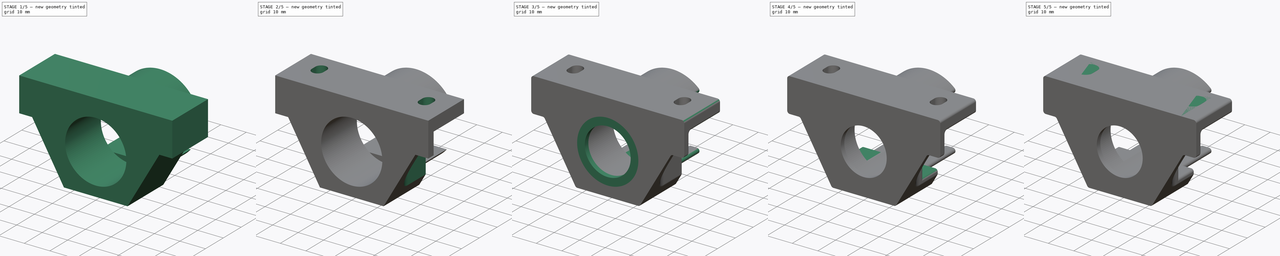
[diagram: build sequence overview — one tinted view per stage of 5, left to right]
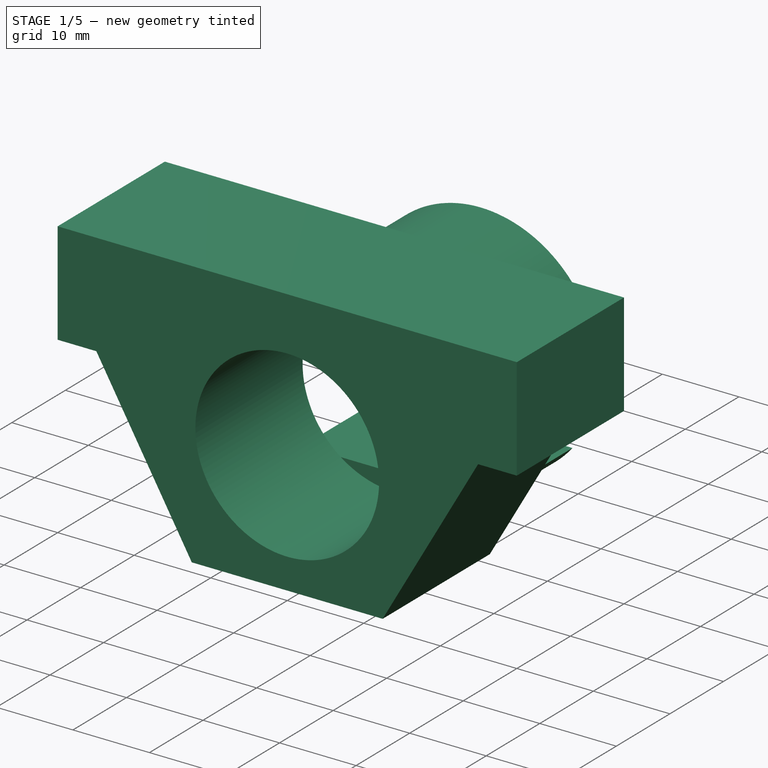
[diagram: stage 1 of 5 — iso view after this stage's code; geometry added in this stage tinted green]
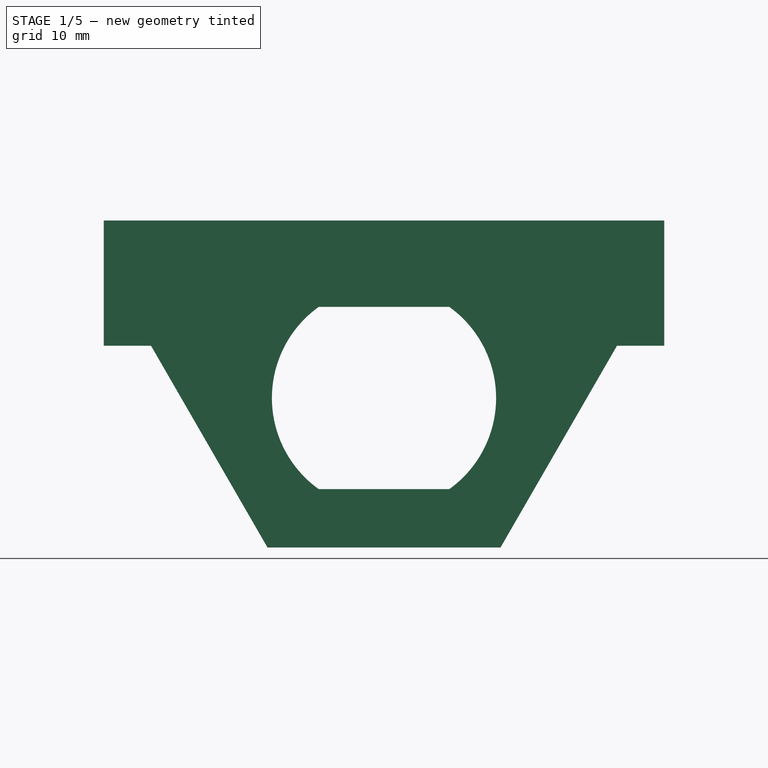
[diagram: stage 1 of 5 — front view after this stage's code; geometry added in this stage tinted green]
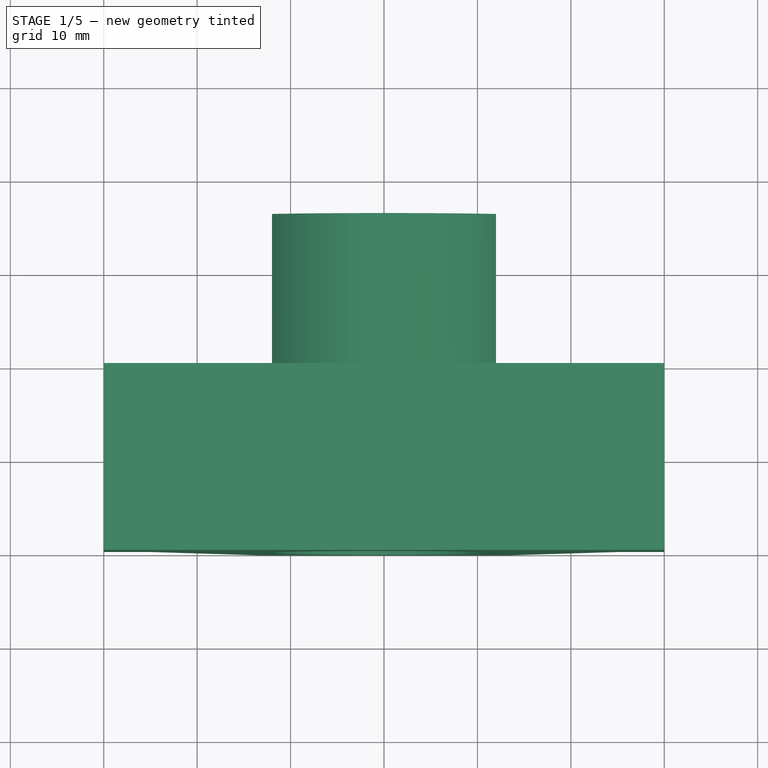
[diagram: stage 1 of 5 — top view after this stage's code; geometry added in this stage tinted green]
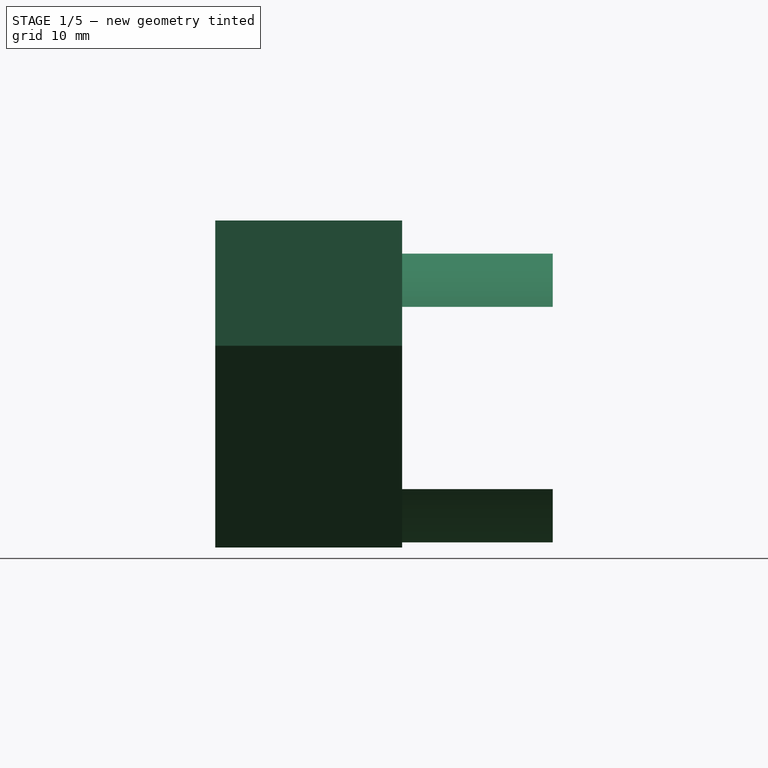
[diagram: stage 1 of 5 — right view after this stage's code; geometry added in this stage tinted green]
FCSTD DOCUMENT  (FreeCAD 0.18R16117 (Git))
Label: T60_2_SensorBracket_mk6
License: All rights reserved
LicenseURL: http://en.wikipedia.org/wiki/All_rights_reserved
objects: Sketcher::SketchObject×9, PartDesign::Pocket×6, PartDesign::Fillet×5, PartDesign::Pad×3, Part::Box×2, PartDesign::Body×1
note: 35 computed .brp shape members not serialized (recipe doc carries the construction recipe); baked Part::Feature solids carry a one-line shape summary decoded from their .brp

FEATURE [Sketcher::SketchObject] Sketch
  MapMode = 5
  Placement = pos=(0,0,0) rot=(1,0,0;1.5708rad)
  Support = -> [XZ_Plane]
  sketch-geometry (14):
    g0: Circle CenterX=0 CenterY=0 CenterZ=0 NormalX=0 NormalY=0 NormalZ=1 AngleXU=0 Radius=12
    g1: LineSegment StartX=12.4708 StartY=-16 StartZ=0 EndX=24.9415 EndY=5.6 EndZ=0
    g2: LineSegment [constr] StartX=24.9415 StartY=5.6 StartZ=0 EndX=12.4708 EndY=27.2 EndZ=0
    g3: LineSegment [constr] StartX=12.4708 StartY=27.2 StartZ=0 EndX=-12.4708 EndY=27.2 EndZ=0
    g4: LineSegment [constr] StartX=-12.4708 StartY=27.2 StartZ=0 EndX=-24.9415 EndY=5.6 EndZ=0
    g5: LineSegment StartX=-24.9415 StartY=5.6 StartZ=0 EndX=-12.4708 EndY=-16 EndZ=0
    g6: LineSegment StartX=-12.4708 StartY=-16 StartZ=0 EndX=12.4708 EndY=-16 EndZ=0
    g7: Circle [constr] CenterX=0 CenterY=5.6 CenterZ=0 NormalX=0 NormalY=0 NormalZ=1 AngleXU=0 Radius=24.9415
    g8: LineSegment StartX=-30 StartY=19 StartZ=0 EndX=30 EndY=19 EndZ=0
    g9: LineSegment StartX=30 StartY=19 StartZ=0 EndX=30 EndY=5.6 EndZ=0
    g10: LineSegment [constr] StartX=30 StartY=5.6 StartZ=0 EndX=-30 EndY=5.6 EndZ=0
    g11: LineSegment StartX=-30 StartY=5.6 StartZ=0 EndX=-30 EndY=19 EndZ=0
    g12: LineSegment StartX=-24.9415 StartY=5.6 StartZ=0 EndX=-30 EndY=5.6 EndZ=0
    g13: LineSegment StartX=24.9415 StartY=5.6 StartZ=0 EndX=30 EndY=5.6 EndZ=0
  constraints (34):
    c: Coincident(g0,g-1)
    c: Coincident(g1,g2)
    c: Coincident(g2,g3)
    c: Coincident(g3,g4)
    c: Coincident(g4,g5)
    c: Coincident(g5,g6)
    c: Coincident(g6,g1)
    c: Equal(g1, g2-g6) x5
    c: PointOnObject(g1,g7)
    c: PointOnObject(g2,g7)
    c: PointOnObject(g3,g7)
    c: PointOnObject(g4,g7)
    c: PointOnObject(g5,g7)
    c: PointOnObject(g6,g7)
    c: PointOnObject(g7,g-2)
    c: Horizontal(g6)
    c: Distance(g7,g0) = 5.6
    c: Coincident(g8,g9)
    c: Coincident(g9,g10)
    c: Coincident(g10,g11)
    c: Coincident(g11,g8)
    c: Horizontal(g10)
    c: Vertical(g9)
    c: Vertical(g11)
    c: PointOnObject(g5,g10)
    c: Coincident(g12,g5)
    c: Coincident(g12,g11)
    c: Coincident(g13,g1)
    c: Coincident(g13,g9)
    c: Symmetric(g8,g8,g-2)
    c: Distance(g0,g8) = 19
    c: Distance(g0,g6) = 16
    c: Distance(g8) = 60
    c: Diameter(g0) = 24
FEATURE [PartDesign::Pad] Pad
  Length = 20
  Length2 = 100
  Placement = pos=(0,0,0) rot=(1,0,0;1.5708rad)
  Profile = -> Sketch
  Type = 0
FEATURE [Sketcher::SketchObject] Sketch001
  MapMode = 5
  Placement = pos=(0,0,0) rot=(-1,0,0;1.5708rad)
  sketch-geometry (8):
    g0: ArcOfCircle CenterX=0 CenterY=0 CenterZ=0 NormalX=0 NormalY=0 NormalZ=1 AngleXU=0 Radius=15.45 StartAngle=3.82452 EndAngle=5.60026
    g1: ArcOfCircle CenterX=0 CenterY=0 CenterZ=0 NormalX=0 NormalY=0 NormalZ=1 AngleXU=0 Radius=9.75 StartAngle=4.71238 EndAngle=4.71239
    g2: LineSegment StartX=11.985 StartY=-9.75 StartZ=0 EndX=4.02518e-05 EndY=-9.75 EndZ=0
    g3: LineSegment StartX=-11.985 StartY=9.75 StartZ=0 EndX=-4.02527e-05 EndY=9.75 EndZ=0
    g4: LineSegment StartX=4.02518e-05 StartY=9.75 StartZ=0 EndX=11.985 EndY=9.75 EndZ=0
    g5: LineSegment StartX=-4.02541e-05 StartY=-9.75 StartZ=0 EndX=-11.985 EndY=-9.75 EndZ=0
    g6: ArcOfCircle CenterX=0 CenterY=0 CenterZ=0 NormalX=0 NormalY=0 NormalZ=1 AngleXU=0 Radius=9.75 StartAngle=1.57079 EndAngle=1.5708
    g7: ArcOfCircle CenterX=0 CenterY=0 CenterZ=0 NormalX=0 NormalY=0 NormalZ=1 AngleXU=0 Radius=15.45 StartAngle=0.682929 EndAngle=2.45866
  constraints (21):
    c: Coincident(g0,g-1)
    c: Diameter(g0) = 30.9
    c: Coincident(g1,g0)
    c: Diameter(g1) = 19.5
    c: Horizontal(g2)
    c: Horizontal(g3)
    c: Tangent(g3,g4)
    c: Tangent(g2,g5)
    c: Coincident(g0,g5)
    c: Coincident(g7,g3)
    c: Coincident(g1,g5)
    c: Coincident(g6,g3)
    c: Coincident(g1,g2)
    c: Coincident(g6,g4)
    c: Coincident(g1,g6)
    c: Equal(g0,g7)
    c: Coincident(g0,g2)
    c: Coincident(g7,g4)
    c: Coincident(g0,g7)
    c: Symmetric(g1,g4,g-1)
    c: DistanceY(g0,g4) = 19.5
FEATURE [PartDesign::Pad] Pad001
  BaseFeature = -> Pad
  Length = 16.12
  Length2 = 100
  Placement = pos=(0,0,0) rot=(1,0,0;1.5708rad)
  Profile = -> Sketch001
  Type = 0
FEATURE [Sketcher::SketchObject] Sketch003
  MapMode = 5
  Support = -> [XY_Plane]
  sketch-geometry (4):
    g0: LineSegment StartX=-2 StartY=2.12 StartZ=0 EndX=2 EndY=2.12 EndZ=0
    g1: LineSegment StartX=2 StartY=2.12 StartZ=0 EndX=2 EndY=5.32 EndZ=0
    g2: LineSegment StartX=2 StartY=5.32 StartZ=0 EndX=-2 EndY=5.32 EndZ=0
    g3: LineSegment StartX=-2 StartY=5.32 StartZ=0 EndX=-2 EndY=2.12 EndZ=0
  constraints (11):
    c: Coincident(g0,g1)
    c: Coincident(g1,g2)
    c: Coincident(g2,g3)
    c: Coincident(g3,g0)
    c: Horizontal(g0)
    c: Vertical(g1)
    c: Vertical(g3)
    c: Distance(g3) = 3.2
    c: Symmetric(g2,g1,g-2)
    c: Distance(g-1,g0) = 2.12
    c: Distance(g2) = 4
FEATURE [Sketcher::SketchObject] Sketch007
  MapMode = 5
  Placement = pos=(0,16.12,-3.22e-14) rot=(-1,0,0;1.5708rad)
  sketch-geometry (4):
    g0: LineSegment StartX=-2 StartY=12.5 StartZ=0 EndX=2 EndY=12.5 EndZ=0
    g1: LineSegment StartX=2 StartY=12.5 StartZ=0 EndX=2 EndY=-12.5 EndZ=0
    g2: LineSegment StartX=2 StartY=-12.5 StartZ=0 EndX=-2 EndY=-12.5 EndZ=0
    g3: LineSegment StartX=-2 StartY=-12.5 StartZ=0 EndX=-2 EndY=12.5 EndZ=0
  constraints (10):
    c: Coincident(g0,g1)
    c: Coincident(g1,g2)
    c: Coincident(g2,g3)
    c: Coincident(g3,g0)
    c: Horizontal(g2)
    c: Vertical(g1)
    c: Distance(g1) = 25
    c: Distance(g2) = 4
    c: Symmetric(g0,g0,g-2)
    c: Symmetric(g0,g2,g-1)
FEATURE [PartDesign::Pocket] Pocket
  BaseFeature = -> Pad001
  Length = 14
  Length2 = 100
  Placement = pos=(0,0,0) rot=(1,0,0;1.5708rad)
  Profile = -> Sketch007
  Type = 0
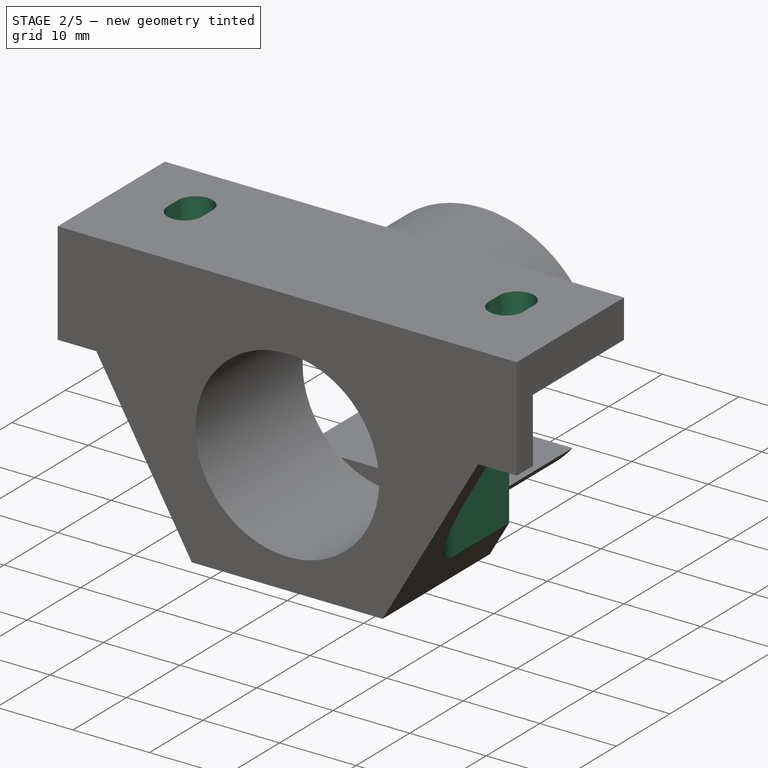
[diagram: stage 2 of 5 — iso view after this stage's code; geometry added in this stage tinted green]
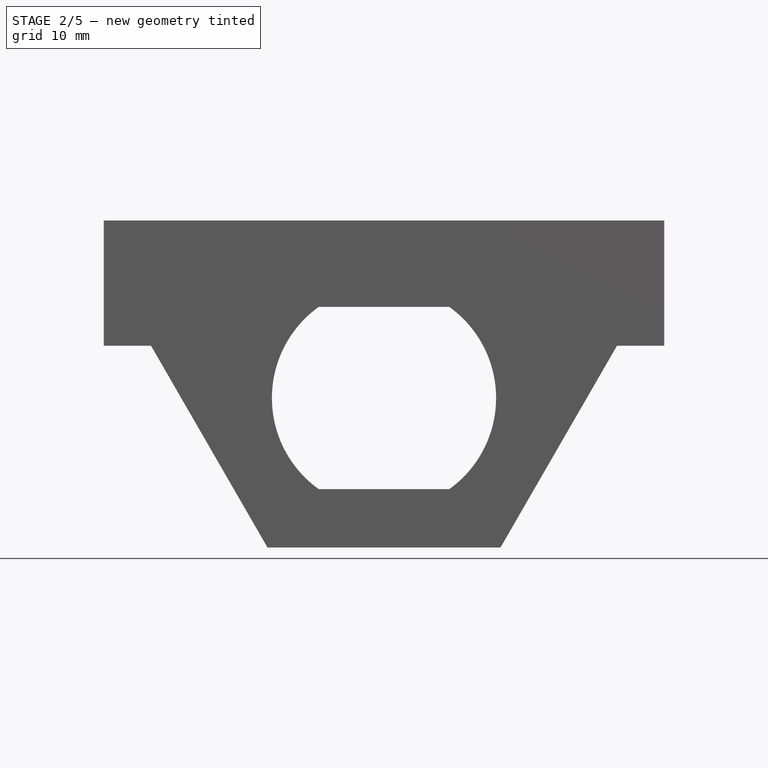
[diagram: stage 2 of 5 — front view after this stage's code; geometry added in this stage tinted green]
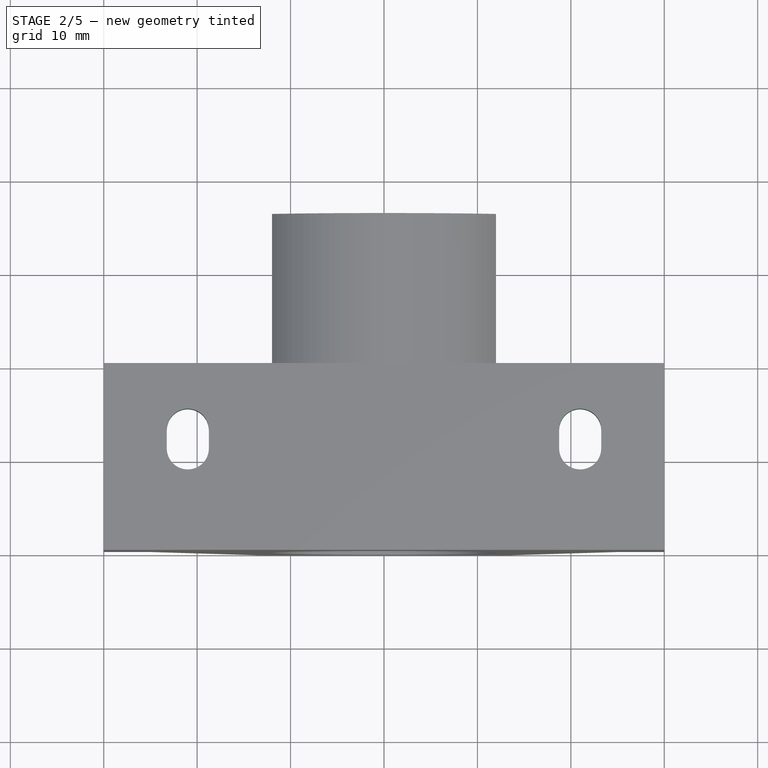
[diagram: stage 2 of 5 — top view after this stage's code; geometry added in this stage tinted green]
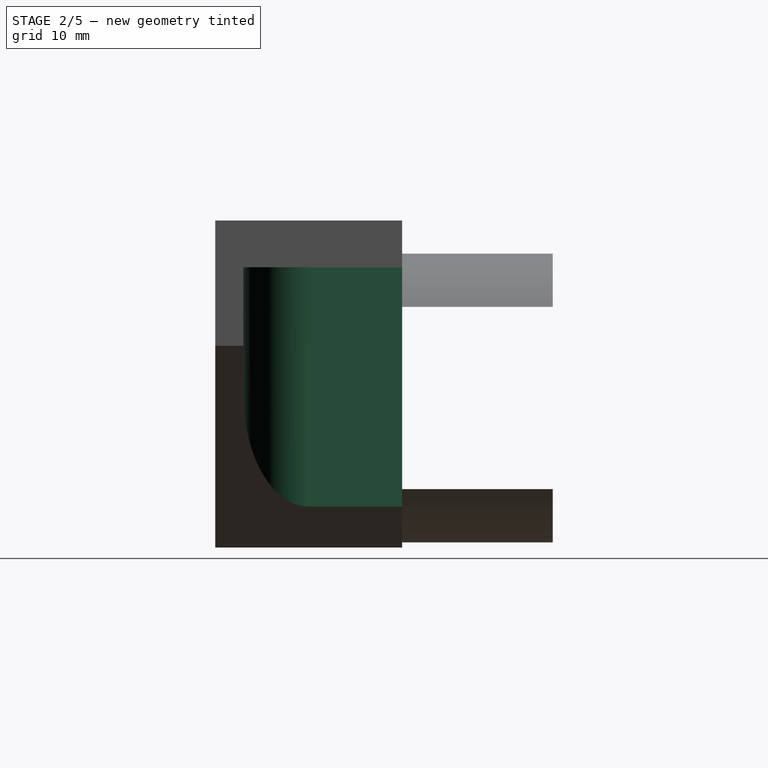
[diagram: stage 2 of 5 — right view after this stage's code; geometry added in this stage tinted green]
FEATURE [PartDesign::Pocket] Pocket004
  BaseFeature = -> Pocket
  Length = 26
  Length2 = 100
  Midplane = true
  Placement = pos=(0,0,0) rot=(1,0,0;1.5708rad)
  Profile = -> Sketch003
  Type = 0
FEATURE [Sketcher::SketchObject] Sketch008
  ExternalGeometry = -> [Pad001]
  MapMode = 5
  Placement = pos=(-6.9e-15,1.2e-15,5.6) rot=(1,0,0;3.14159rad)
  Support = -> [Pad001]
  sketch-geometry (10):
    g0: LineSegment StartX=-30 StartY=0 StartZ=0 EndX=-15 EndY=0 EndZ=0
    g1: LineSegment StartX=-15 StartY=0 StartZ=0 EndX=-15 EndY=10 EndZ=0
    g2: LineSegment StartX=-22 StartY=17 StartZ=0 EndX=-30 EndY=17 EndZ=0
    g3: LineSegment StartX=-30 StartY=17 StartZ=0 EndX=-30 EndY=0 EndZ=0
    g4: LineSegment StartX=30 StartY=0 StartZ=0 EndX=15 EndY=0 EndZ=0
    g5: LineSegment StartX=15 StartY=0 StartZ=0 EndX=15 EndY=10 EndZ=0
    g6: LineSegment StartX=22 StartY=17 StartZ=0 EndX=30 EndY=17 EndZ=0
    g7: LineSegment StartX=30 StartY=17 StartZ=0 EndX=30 EndY=0 EndZ=0
    g8: ArcOfCircle CenterX=22 CenterY=10 CenterZ=0 NormalX=0 NormalY=0 NormalZ=1 AngleXU=0 Radius=7 StartAngle=1.5708 EndAngle=3.14159
    g9: ArcOfCircle CenterX=-22 CenterY=10 CenterZ=0 NormalX=0 NormalY=0 NormalZ=1 AngleXU=0 Radius=7 StartAngle=2.9822e-12 EndAngle=1.5708
  constraints (26):
    c: Coincident(g0,g1)
    c: Coincident(g2,g3)
    c: Coincident(g3,g0)
    c: Horizontal(g0)
    c: Horizontal(g2)
    c: Vertical(g1)
    c: Vertical(g3)
    c: Coincident(g0,g-3)
    c: Coincident(g4,g5)
    c: Coincident(g6,g7)
    c: Coincident(g7,g4)
    c: Horizontal(g4)
    c: Horizontal(g6)
    c: Vertical(g5)
    c: Vertical(g7)
    c: Coincident(g4,g-4)
    c: Equal(g6,g2)
    c: Equal(g1,g5)
    c: Distance(g2,g-3) = 3
    c: Distance(g0) = 15
    c: Tangent(g5,g8) = 1.5708
    c: Tangent(g6,g8) = 1.5708
    c: Tangent(g1,g9) = -1.5708
    c: Tangent(g2,g9) = -1.5708
    c: Equal(g9,g8)
    c: Radius(g8) = 7
FEATURE [PartDesign::Pocket] Pocket005
  BaseFeature = -> Pocket004
  Length = 8.4
  Length2 = 100
  Placement = pos=(0,0,0) rot=(1,0,0;1.5708rad)
  Profile = -> Sketch008
  Type = 4
FEATURE [Sketcher::SketchObject] Sketch009
  MapMode = 5
  Placement = pos=(0,1.05e-14,19) rot=(0,0,1;3.14159rad)
  Support = -> [Pocket005]
  sketch-geometry (8):
    g0: ArcOfCircle CenterX=-21 CenterY=9.13943 CenterZ=0 NormalX=0 NormalY=0 NormalZ=1 AngleXU=0 Radius=2.25 StartAngle=2e-16 EndAngle=3.14159
    g1: ArcOfCircle CenterX=-21 CenterY=7.13943 CenterZ=0 NormalX=0 NormalY=0 NormalZ=1 AngleXU=0 Radius=2.25 StartAngle=3.14159 EndAngle=6.28319
    g2: LineSegment StartX=-23.25 StartY=9.13943 StartZ=0 EndX=-23.25 EndY=7.13943 EndZ=0
    g3: LineSegment StartX=-18.75 StartY=9.13943 StartZ=0 EndX=-18.75 EndY=7.13943 EndZ=0
    g4: ArcOfCircle CenterX=21 CenterY=9.13943 CenterZ=0 NormalX=0 NormalY=0 NormalZ=1 AngleXU=0 Radius=2.25 StartAngle=1e-16 EndAngle=3.14159
    g5: ArcOfCircle CenterX=21 CenterY=7.13943 CenterZ=0 NormalX=0 NormalY=0 NormalZ=1 AngleXU=0 Radius=2.25 StartAngle=3.14159 EndAngle=6.28319
    g6: LineSegment StartX=18.75 StartY=9.13943 StartZ=0 EndX=18.75 EndY=7.13943 EndZ=0
    g7: LineSegment StartX=23.25 StartY=9.13943 StartZ=0 EndX=23.25 EndY=7.13943 EndZ=0
  constraints (18):
    c: Tangent(g0,g3) = 1.5708
    c: Tangent(g0,g2) = -1.5708
    c: Tangent(g2,g1) = -1.5708
    c: Tangent(g3,g1) = 1.5708
    c: Vertical(g2)
    c: Equal(g0,g1)
    c: Tangent(g4,g7) = 1.5708
    c: Tangent(g4,g6) = -1.5708
    c: Tangent(g6,g5) = -1.5708
    c: Tangent(g7,g5) = 1.5708
    c: Vertical(g6)
    c: Equal(g4,g5)
    c: Equal(g0,g4)
    c: Symmetric(g0,g4,g-2)
    c: Equal(g3,g6)
    c: Distance(g0,g1) = 2
    c: Diameter(g0) = 4.5
    c: Distance(g0,g-2) = 21
FEATURE [PartDesign::Pocket] Pocket006
  BaseFeature = -> Pocket005
  Length = 5
  Length2 = 100
  Placement = pos=(0,0,0) rot=(1,0,0;1.5708rad)
  Profile = -> Sketch009
  Type = 0
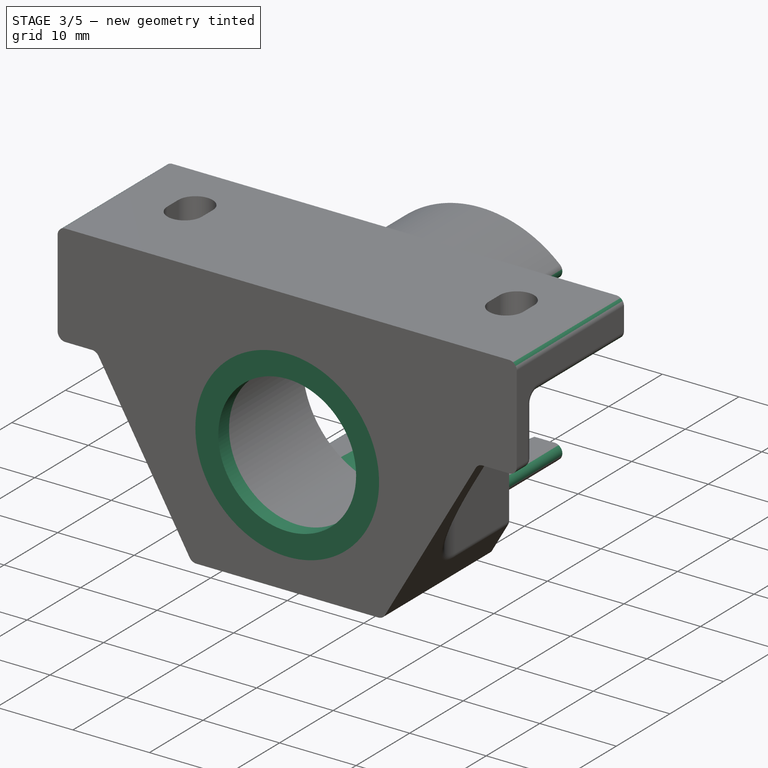
[diagram: stage 3 of 5 — iso view after this stage's code; geometry added in this stage tinted green]
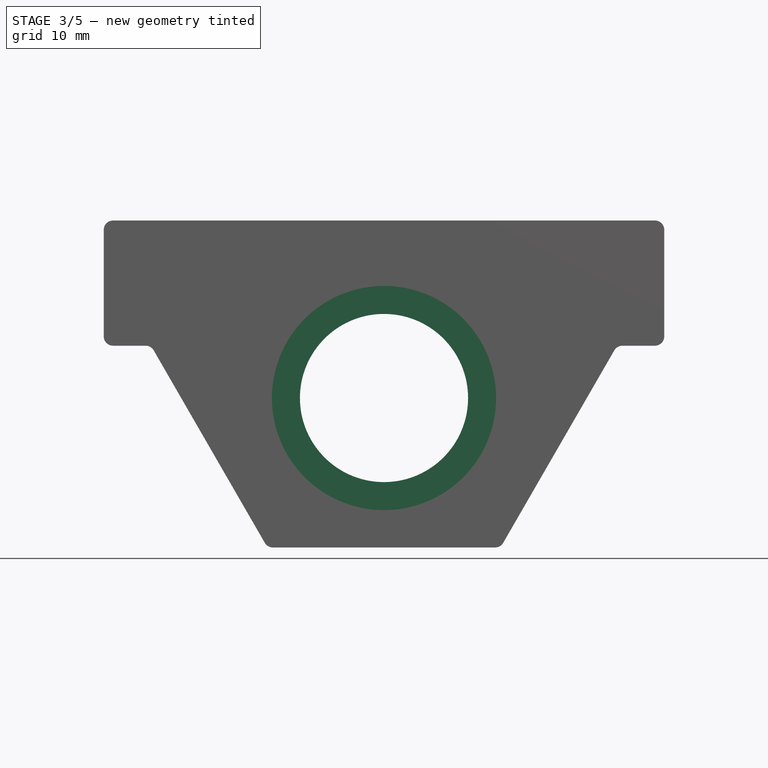
[diagram: stage 3 of 5 — front view after this stage's code; geometry added in this stage tinted green]
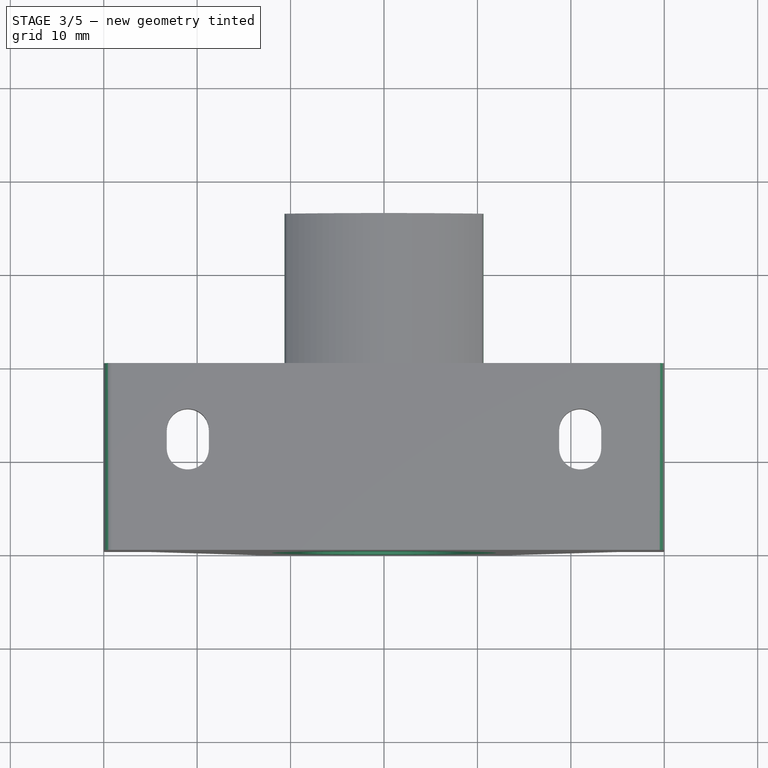
[diagram: stage 3 of 5 — top view after this stage's code; geometry added in this stage tinted green]
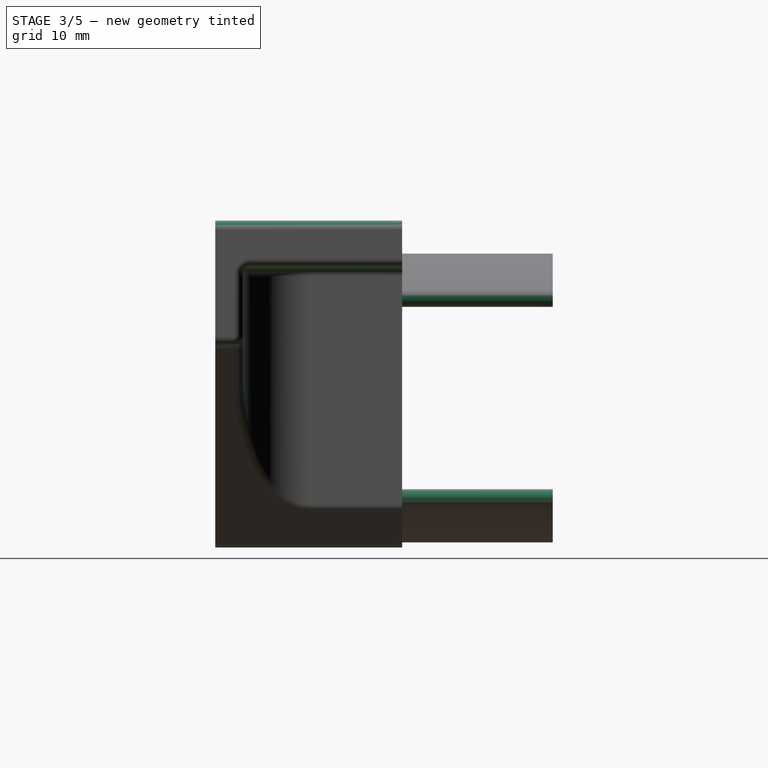
[diagram: stage 3 of 5 — right view after this stage's code; geometry added in this stage tinted green]
FEATURE [Sketcher::SketchObject] Sketch010
  MapMode = 5
  Placement = pos=(0,-20,-4e-15) rot=(1,0,0;1.5708rad)
  sketch-geometry (2):
    g0: Circle CenterX=0 CenterY=0 CenterZ=0 NormalX=0 NormalY=0 NormalZ=1 AngleXU=0 Radius=12
    g1: Circle CenterX=0 CenterY=0 CenterZ=0 NormalX=0 NormalY=0 NormalZ=1 AngleXU=0 Radius=8.9
  constraints (4):
    c: Coincident(g0,g-1)
    c: Diameter(g0) = 24
    c: Coincident(g1,g0)
    c: Diameter(g1) = 17.8
FEATURE [PartDesign::Pocket] Pocket007
  BaseFeature = -> Pocket006
  Length = 5
  Length2 = 100
  Placement = pos=(0,0,0) rot=(1,0,0;1.5708rad)
  Profile = -> Sketch010
  Type = 1
FEATURE [PartDesign::Fillet] Fillet
  Base = -> Pocket007 [Edge44,Vertex8,Edge7,Edge5,Edge33,Edge72,Edge60,Edge49,Edge58,Edge3,Edge8,Edge9,Edge43,Edge68,Edge90,Edge59,Edge42,Edge14,Edge63]
  BaseFeature = -> Pocket007
  Placement = pos=(0,0,0) rot=(1,0,0;1.5708rad)
  Radius = 1
FEATURE [PartDesign::Fillet] Fillet001
  Base = -> Fillet [Edge122,Edge118,Edge119,Edge124]
  BaseFeature = -> Fillet
  Placement = pos=(0,0,0) rot=(1,0,0;1.5708rad)
  Radius = 1
FEATURE [Sketcher::SketchObject] Sketch011
  MapMode = 5
  Placement = pos=(0,-20,2.3e-15) rot=(1,0,0;1.5708rad)
  sketch-geometry (2):
    g0: Circle CenterX=0 CenterY=0 CenterZ=0 NormalX=0 NormalY=0 NormalZ=1 AngleXU=0 Radius=12.7513
    g1: Circle CenterX=0 CenterY=0 CenterZ=0 NormalX=0 NormalY=0 NormalZ=1 AngleXU=0 Radius=9
  constraints (3):
    c: Coincident(g0,g-1)
    c: Coincident(g1,g0)
    c: Diameter(g1) = 18
FEATURE [PartDesign::Pad] Pad002
  BaseFeature = -> Fillet001
  Length = 2
  Length2 = 100
  Placement = pos=(0,0,0) rot=(1,0,0;1.5708rad)
  Profile = -> Sketch011
  Reversed = true
  Type = 0
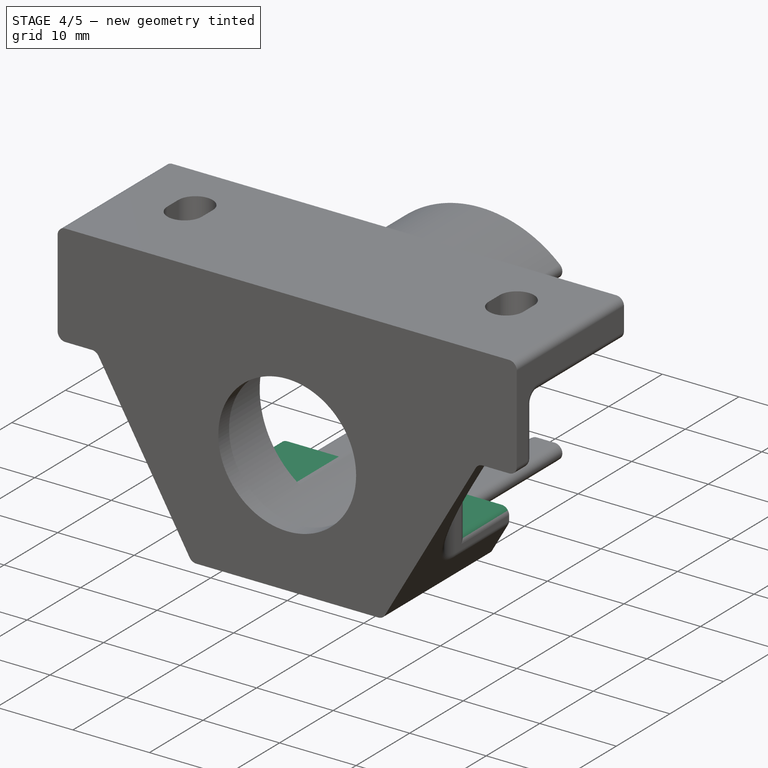
[diagram: stage 4 of 5 — iso view after this stage's code; geometry added in this stage tinted green]
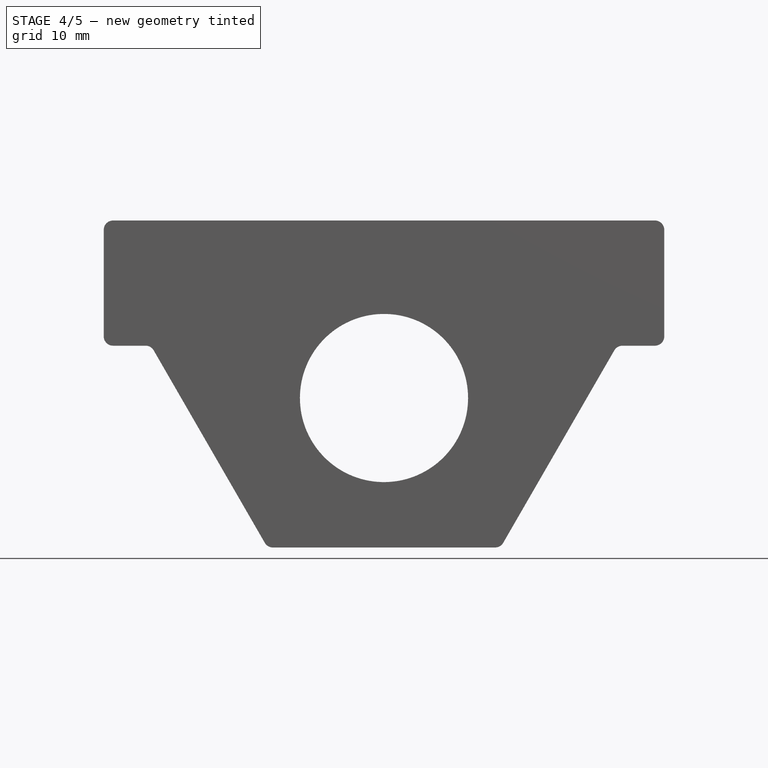
[diagram: stage 4 of 5 — front view after this stage's code; geometry added in this stage tinted green]
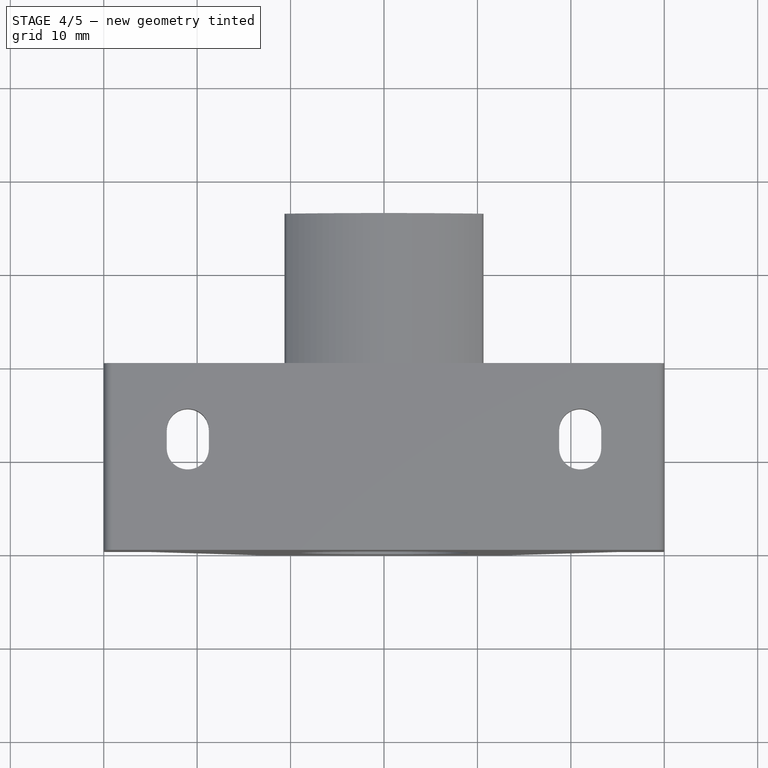
[diagram: stage 4 of 5 — top view after this stage's code; geometry added in this stage tinted green]
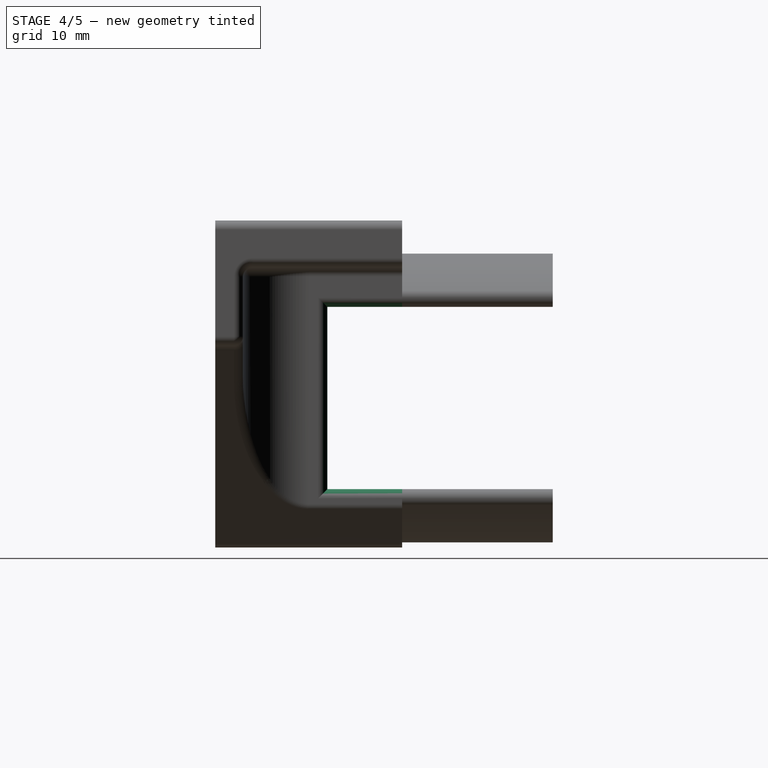
[diagram: stage 4 of 5 — right view after this stage's code; geometry added in this stage tinted green]
FEATURE [Sketcher::SketchObject] Sketch012
  MapMode = 5
  Placement = pos=(0,0,0) rot=(-1,0,0;1.5708rad)
  Support = -> [Pocket007]
  sketch-geometry (4):
    g0: LineSegment StartX=-31.6588 StartY=9.75 StartZ=0 EndX=27.6854 EndY=9.75 EndZ=0
    g1: LineSegment StartX=27.6854 StartY=9.75 StartZ=0 EndX=27.6854 EndY=-9.75 EndZ=0
    g2: LineSegment StartX=27.6854 StartY=-9.75 StartZ=0 EndX=-31.6588 EndY=-9.75 EndZ=0
    g3: LineSegment StartX=-31.6588 StartY=-9.75 StartZ=0 EndX=-31.6588 EndY=9.75 EndZ=0
  constraints (9):
    c: Coincident(g0,g1)
    c: Coincident(g1,g2)
    c: Coincident(g2,g3)
    c: Coincident(g3,g0)
    c: Horizontal(g0)
    c: Horizontal(g2)
    c: Vertical(g3)
    c: Symmetric(g0,g1,g-1)
    c: Distance(g1) = 19.5
FEATURE [PartDesign::Pocket] Pocket008
  BaseFeature = -> Pad002
  Length = 8
  Length2 = 100
  Placement = pos=(0,0,0) rot=(1,0,0;1.5708rad)
  Profile = -> Sketch012
  Type = 0
FEATURE [PartDesign::Fillet] Fillet002
  Base = -> Pocket008 [Edge33,Edge28,Edge83,Edge85,Edge26,Edge99,Edge89,Edge91,Edge104,Edge181,Edge102,Edge189,Edge32,Edge84]
  BaseFeature = -> Pocket008
  Placement = pos=(0,0,0) rot=(1,0,0;1.5708rad)
  Radius = 1
FEATURE [PartDesign::Fillet] Fillet003
  Base = -> Fillet002 [Face120,Face114,Edge296,Edge294,Edge301,Edge303,Edge260,Edge254,Edge257,Edge292]
  BaseFeature = -> Fillet002
  Placement = pos=(0,0,0) rot=(1,0,0;1.5708rad)
  Radius = 0.3
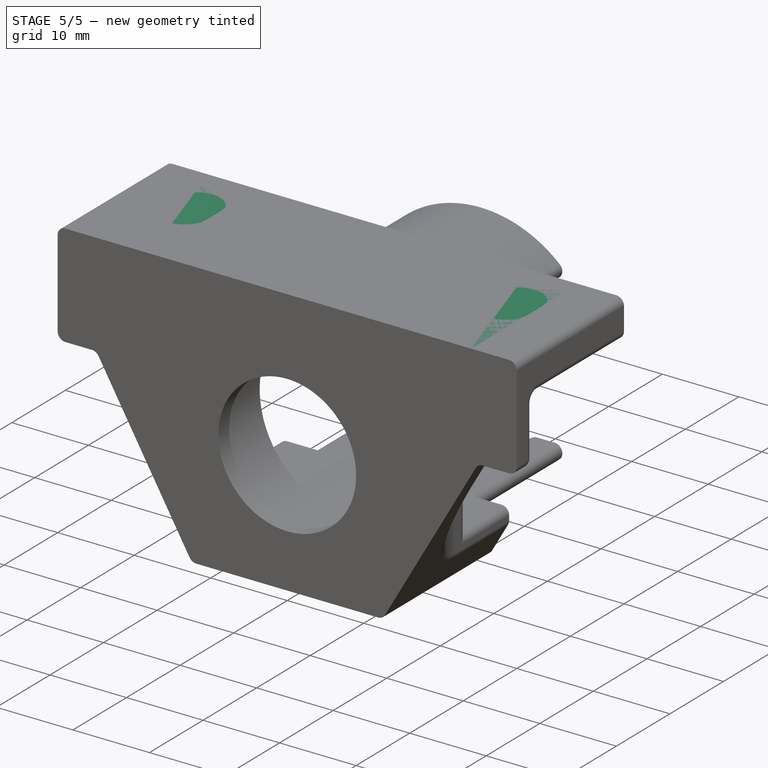
[diagram: stage 5 of 5 — iso view after this stage's code; geometry added in this stage tinted green]
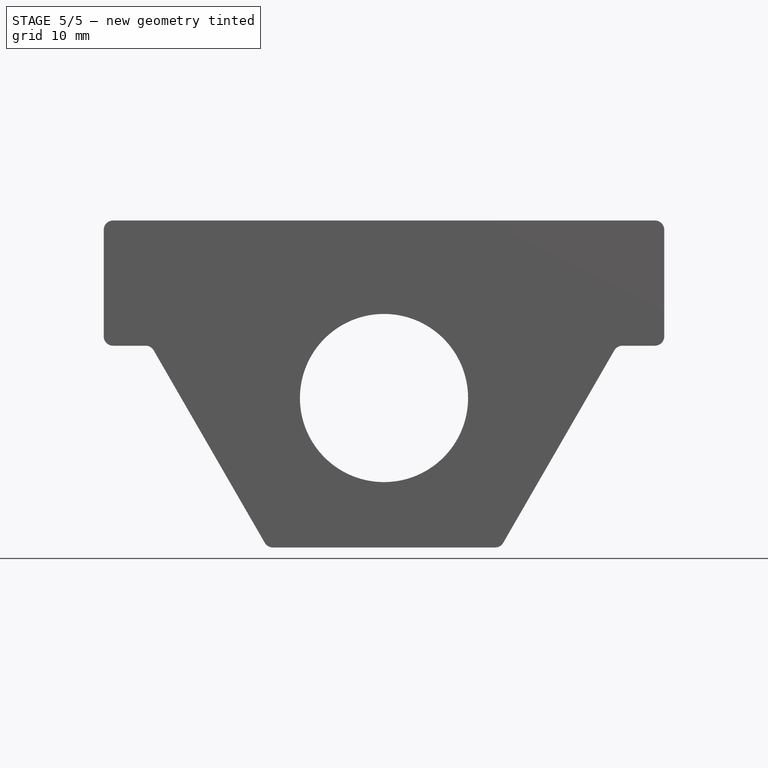
[diagram: stage 5 of 5 — front view after this stage's code; geometry added in this stage tinted green]
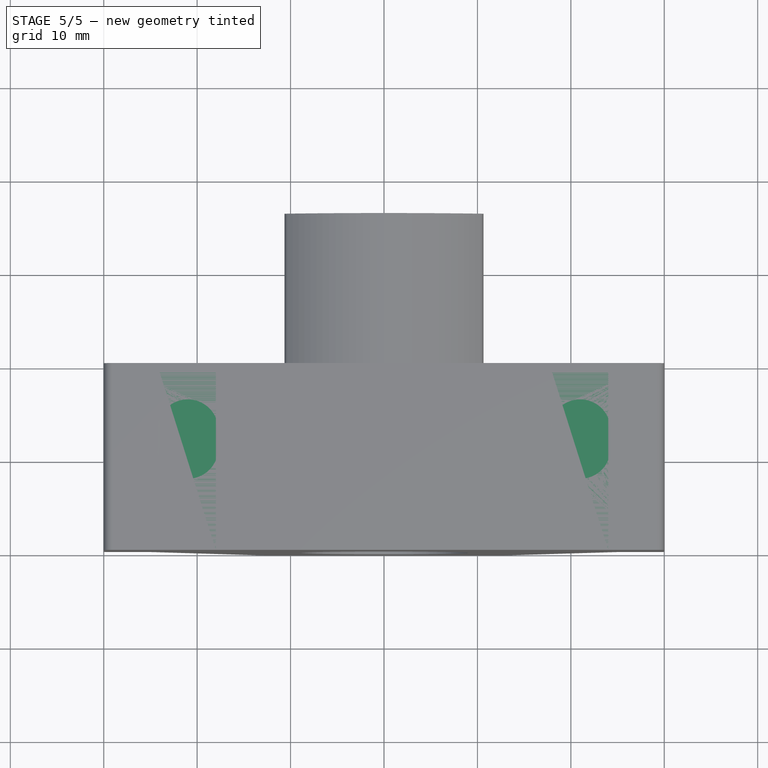
[diagram: stage 5 of 5 — top view after this stage's code; geometry added in this stage tinted green]
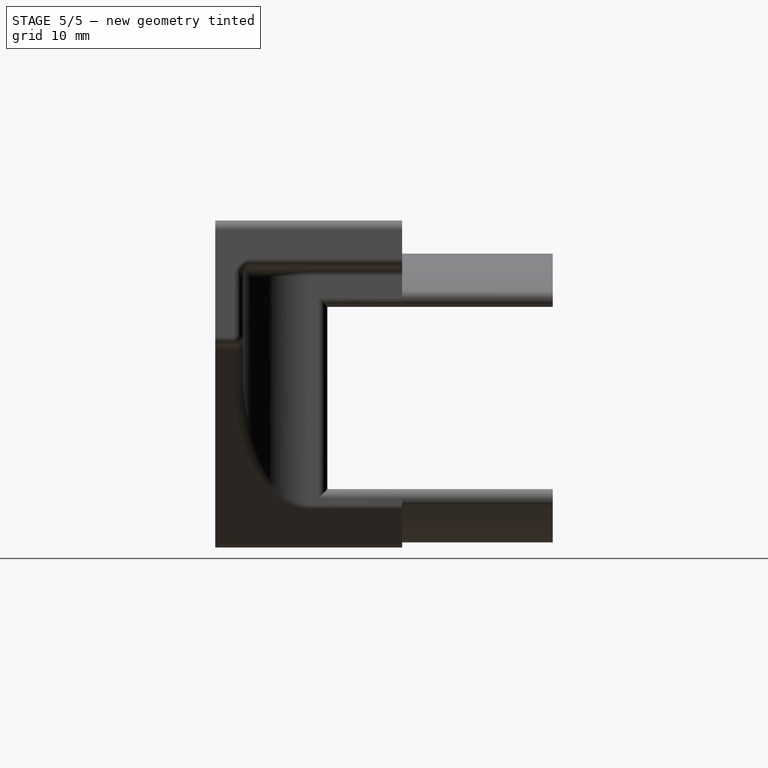
[diagram: stage 5 of 5 — right view after this stage's code; geometry added in this stage tinted green]
FEATURE [Part::Box] Box  label="Cube"
  AttacherType = Attacher::AttachEngine3D
  Height = 5
  Length = 6
  Placement = pos=(18,-20,14) rot=(0,0,1;0rad)
  Width = 19
FEATURE [Part::Box] Box001  label="Cube001"
  AttacherType = Attacher::AttachEngine3D
  Height = 5
  Length = 6
  Placement = pos=(-24,-20,14) rot=(0,0,1;0rad)
  Width = 19
FEATURE [PartDesign::Fillet] Fillet004
  Base = -> Fillet003 [Edge212,Edge216]
  BaseFeature = -> Fillet003
  Placement = pos=(0,0,0) rot=(1,0,0;1.5708rad)
  Radius = 1
FEATURE [PartDesign::Body] Body
  Group = -> [Sketch,Pad,Sketch001,Pad001,Sketch003,Sketch007,Pocket,Pocket004,Sketch008,Pocket005,Sketch009,Pocket006,Sketch010,Pocket007,Fillet,Fillet001,Sketch011,Pad002,Sketch012,Pocket008,Fillet002,Fillet003,Fillet004]
  Origin = -> Origin
  Tip = -> Fillet004
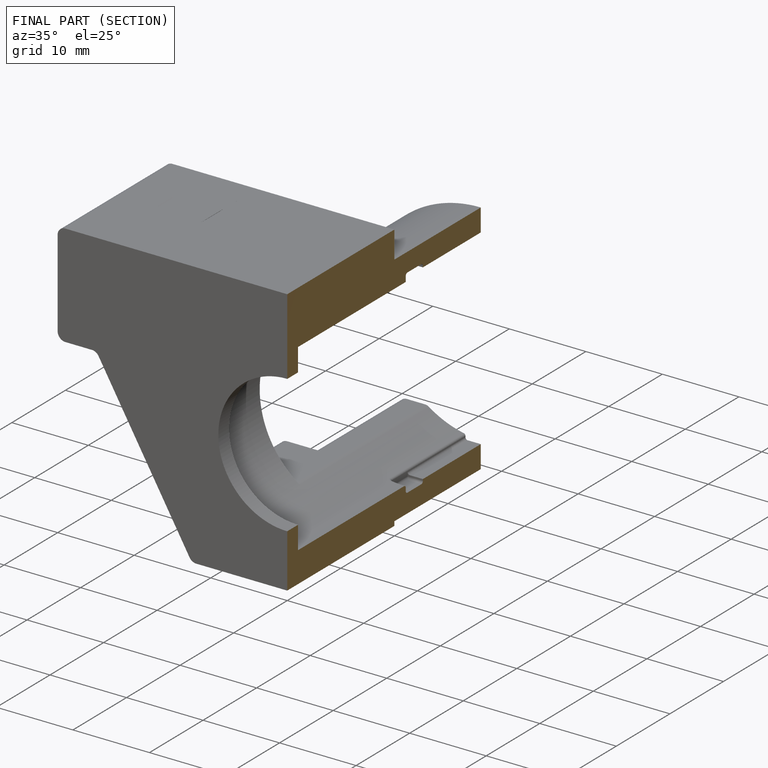
[diagram: finished part — half-section view (interior)]
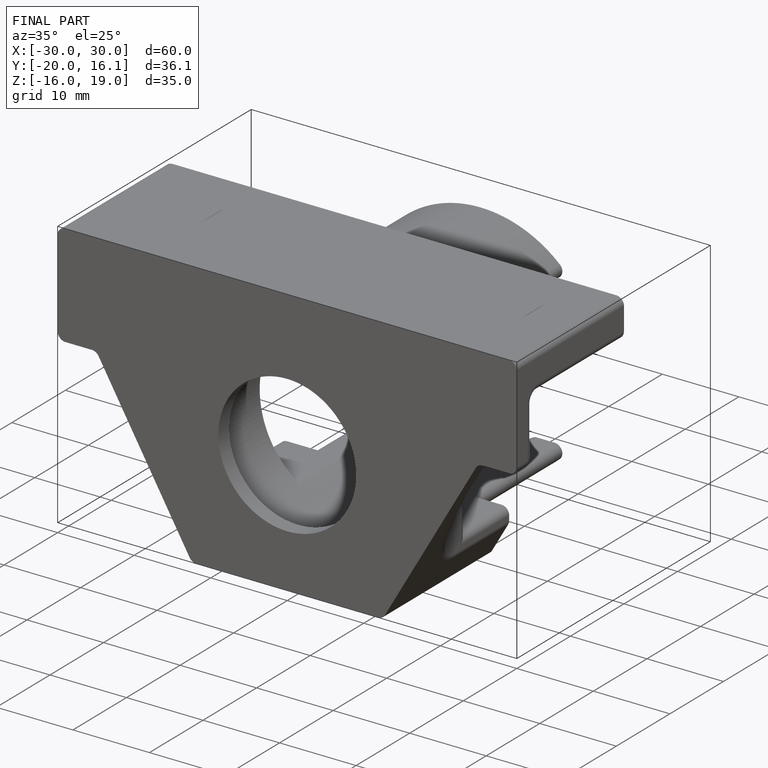
[diagram: finished part — iso view with bounding-box wireframe]
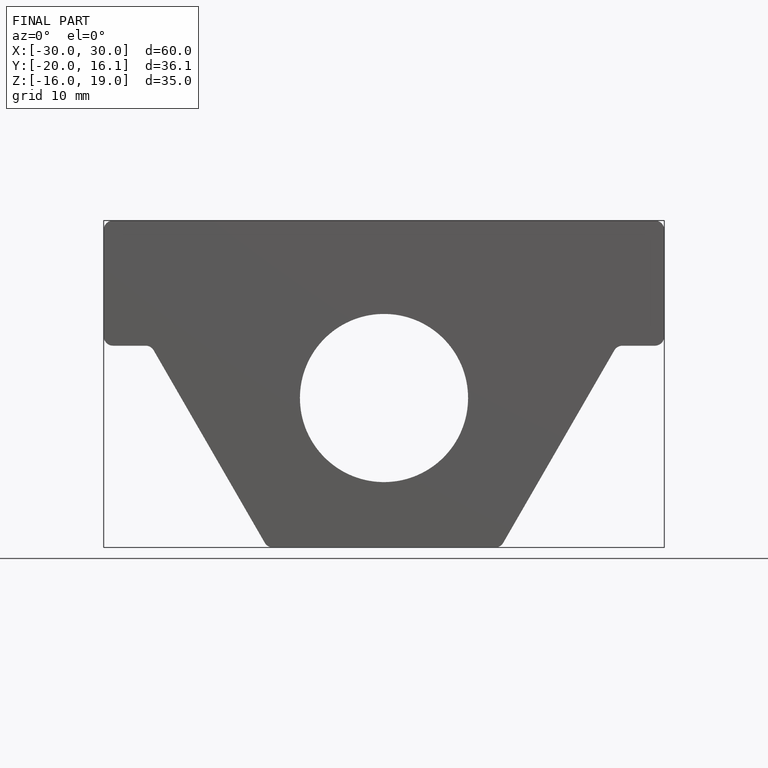
[diagram: finished part — front view with bounding-box wireframe]
